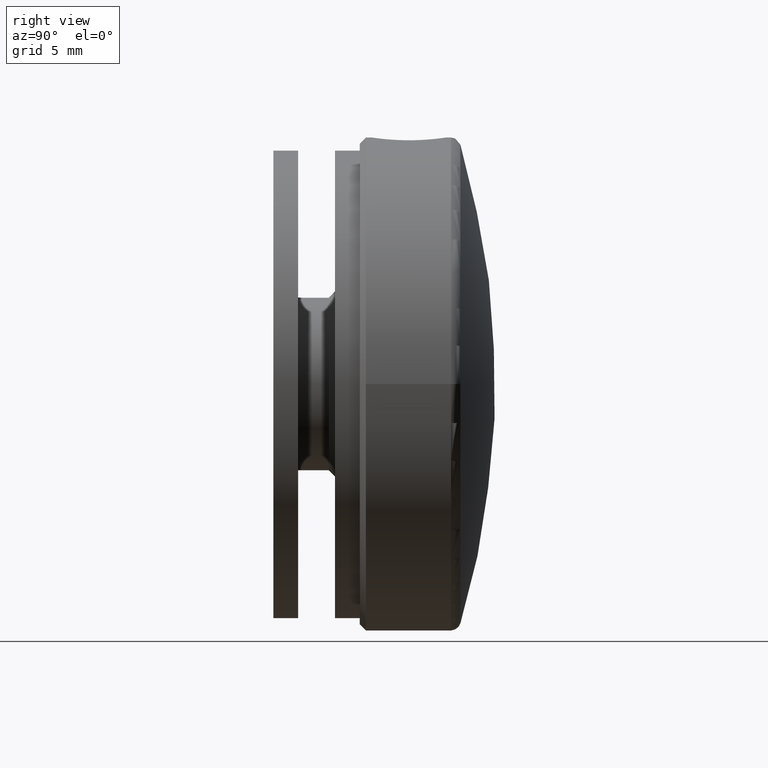
[diagram: clean part render]
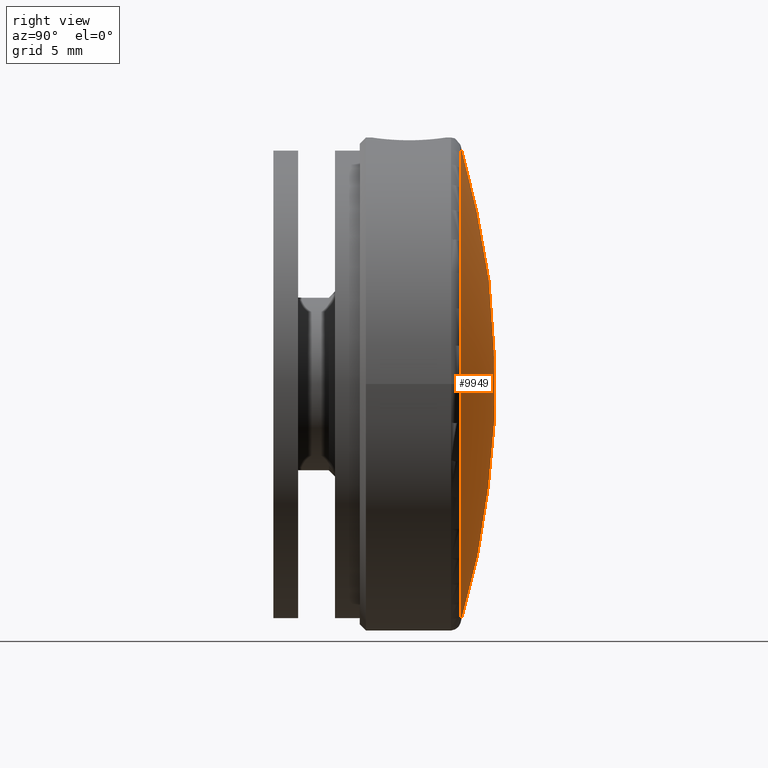
[diagram: same view with one face highlighted and labeled with its STEP entity id]
A machine part, right view. The second image highlights one B-rep face of the part: STEP entity #9949.
In plain terms, the highlighted spherical surface has radius 68.1667 mm.
Its self-contained STEP definition (entity closure, byte-faithful):
#2188 = EDGE_LOOP ( 'NONE', ( #4419 ) ) ;
#2782 = CARTESIAN_POINT ( 'NONE',  ( -6.182504818605450607E-14, 8.172808612301585285, 0.000000000000000000 ) ) ;
#3899 = DIRECTION ( 'NONE',  ( -9.462128050782586841E-16, 1.000000000000000000, 0.000000000000000000 ) ) ;
#3922 = AXIS2_PLACEMENT_3D ( 'NONE', #7056, #15465, #14395 ) ;
#4008 = VERTEX_POINT ( 'NONE', #8985 ) ;
#4419 = ORIENTED_EDGE ( 'NONE', *, *, #7841, .T. ) ;
#6748 = CIRCLE ( 'NONE', #13308, 19.42800593765462480 ) ;
#7056 = CARTESIAN_POINT ( 'NONE',  ( 0.000000000000000000, -57.16666666666710483, 0.000000000000000000 ) ) ;
#7262 = SPHERICAL_SURFACE ( 'NONE', #3922, 68.16666666666708352 ) ;
#7841 = EDGE_CURVE ( 'NONE', #4008, #4008, #6748, .T. ) ;
#8985 = CARTESIAN_POINT ( 'NONE',  ( 19.42800593765456441, 8.172808612301603048, 0.000000000000000000 ) ) ;
#9949 = ADVANCED_FACE ( 'NONE', ( #10806 ), #7262, .T. ) ;
#10806 = FACE_OUTER_BOUND ( 'NONE', #2188, .T. ) ;
#12236 = DIRECTION ( 'NONE',  ( 1.000000000000000000, 9.821882027923899333E-16, 0.000000000000000000 ) ) ;
#13308 = AXIS2_PLACEMENT_3D ( 'NONE', #2782, #3899, #12236 ) ;
#14395 = DIRECTION ( 'NONE',  ( 1.000000000000000000, 9.161375814449584673E-16, 0.000000000000000000 ) ) ;
#15465 = DIRECTION ( 'NONE',  ( 0.000000000000000000, -0.000000000000000000, 1.000000000000000000 ) ) ;